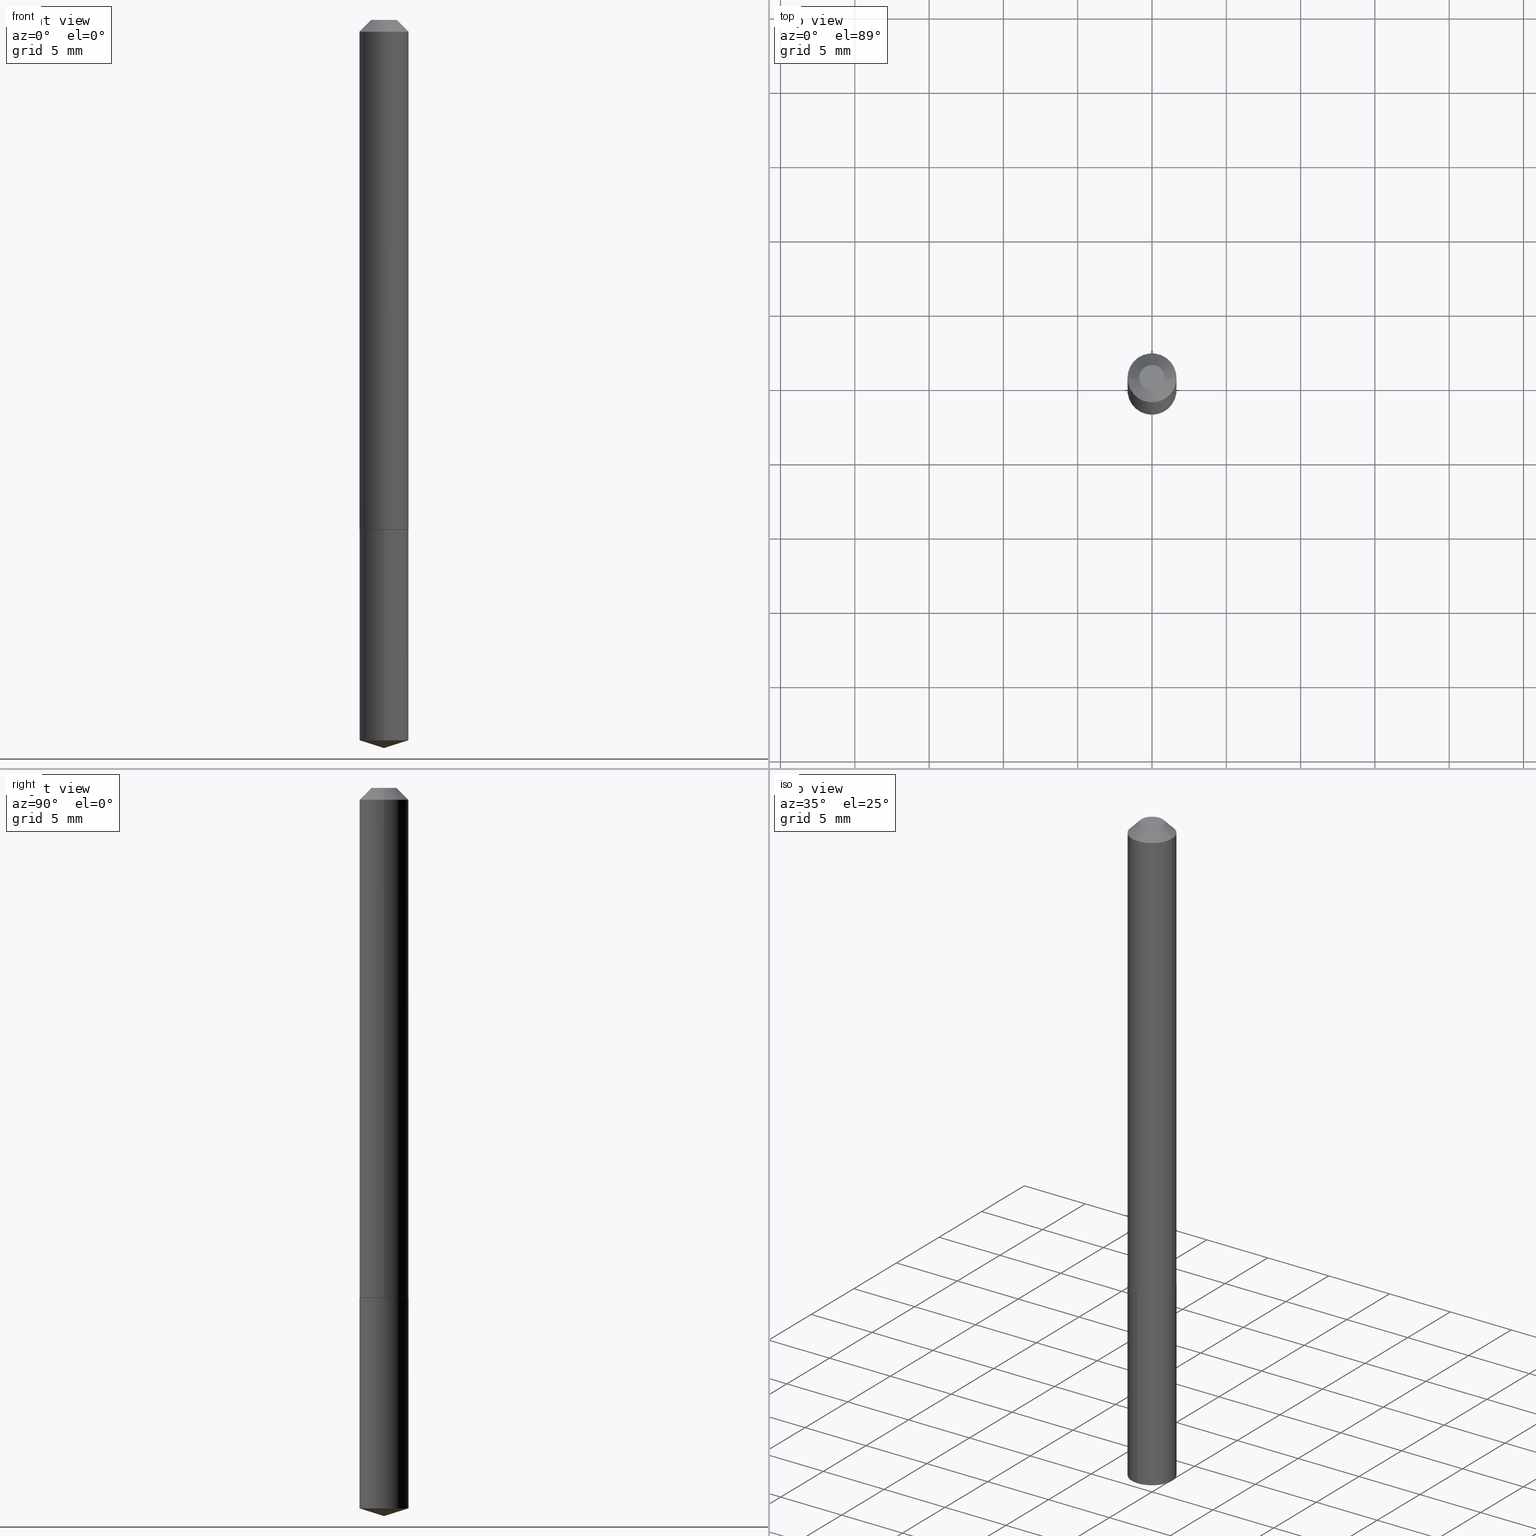
[diagram: canonical four-view strip — front | top / right | iso, engineering-drawing reading convention]
A machine part, canonical four-view strip (front | top / right | iso — engineering-drawing reading convention). The complete STEP part file that produces these views, byte-faithful:
ISO-10303-21;
HEADER;
FILE_DESCRIPTION (( 'STEP AP203' ),
    '1' );
FILE_NAME ('62077.STEP',
    '2024-04-23T05:35:52',
    ( '' ),
    ( '' ),
    'SwSTEP 2.0',
    'SolidWorks 2023',
    '' );
FILE_SCHEMA (( 'CONFIG_CONTROL_DESIGN' ));
ENDSEC;

DATA;
#1 = SECURITY_CLASSIFICATION_LEVEL ( 'unclassified' ) ;
#2 = EDGE_CURVE ( 'NONE', #41, #174, #275, .T. ) ;
#3 = AXIS2_PLACEMENT_3D ( 'NONE', #189, #330, #116 ) ;
#4 = LOCAL_TIME ( 1, 35, 52.00000000000000000, #67 ) ;
#5 = CALENDAR_DATE ( 2024, 23, 4 ) ;
#6 = EDGE_CURVE ( 'NONE', #93, #350, #31, .T. ) ;
#7 = ADVANCED_BREP_SHAPE_REPRESENTATION ( '62077', ( #328, #338, #224 ), #76 ) ;
#8 = AXIS2_PLACEMENT_3D ( 'NONE', #228, #341, #196 ) ;
#9 = CONICAL_SURFACE ( 'NONE', #107, 124.8659371009155308, 1.265363707695892792 ) ;
#10 = CC_DESIGN_PERSON_AND_ORGANIZATION_ASSIGNMENT ( #179, #264, ( #190 ) ) ;
#11 = DIRECTION ( 'NONE',  ( 2.445529134610573357E-29, -3.491394945104238914E-15, -1.000000000000000000 ) ) ;
#12 = APPLICATION_CONTEXT ( 'configuration controlled 3d designs of mechanical parts and assemblies' ) ;
#13 = DIRECTION ( 'NONE',  ( -1.000000000000000000, 6.982962677686266711E-15, 0.000000000000000000 ) ) ;
#14 = ORIENTED_EDGE ( 'NONE', *, *, #283, .F. ) ;
#15 = EDGE_CURVE ( 'NONE', #388, #138, #121, .T. ) ;
#16 = CARTESIAN_POINT ( 'NONE',  ( 0.000000000000000000, 0.000000000000000000, 0.000000000000000000 ) ) ;
#17 = CARTESIAN_POINT ( 'NONE',  ( 4.717507330631521726E-29, -6.735483303531877535E-15, -1.929099999999999815 ) ) ;
#18 = CARTESIAN_POINT ( 'NONE',  ( 3.302116528991790311E-29, -4.714547251839899498E-15, -1.350300000000000056 ) ) ;
#19 = FACE_OUTER_BOUND ( 'NONE', #334, .T. ) ;
#20 = CIRCLE ( 'NONE', #70, 0.06494999999999999385 ) ;
#21 = LINE ( 'NONE', #166, #268 ) ;
#22 = ADVANCED_FACE ( 'NONE', ( #128 ), #235, .F. ) ;
#23 = DIRECTION ( 'NONE',  ( -2.445468806185136597E-29, 3.491481338843145583E-15, 1.000000000000000000 ) ) ;
#24 = EDGE_LOOP ( 'NONE', ( #347, #318, #262 ) ) ;
#25 = ORGANIZATION ( 'UNSPECIFIED', 'UNSPECIFIED', '' ) ;
#26 = APPROVAL_ROLE ( '' ) ;
#27 = APPROVAL ( #39, 'UNSPECIFIED' ) ;
#28 = ADVANCED_FACE ( 'NONE', ( #206 ), #343, .T. ) ;
#29 = EDGE_LOOP ( 'NONE', ( #170, #302, #125, #332 ) ) ;
#30 = DATE_AND_TIME ( #380, #4 ) ;
#31 = CIRCLE ( 'NONE', #368, 0.06494999999999999385 ) ;
#32 = ORIENTED_EDGE ( 'NONE', *, *, #390, .F. ) ;
#33 = CIRCLE ( 'NONE', #243, 0.03369999999999999385 ) ;
#34 = CARTESIAN_POINT ( 'NONE',  ( 3.302116528991790311E-29, -4.714547251839899498E-15, -1.350300000000000056 ) ) ;
#35 = DIRECTION ( 'NONE',  ( -2.445529134610573638E-29, 3.491394945104238914E-15, 1.000000000000000000 ) ) ;
#36 = EDGE_LOOP ( 'NONE', ( #269, #81, #389, #14 ) ) ;
#37 = CC_DESIGN_PERSON_AND_ORGANIZATION_ASSIGNMENT ( #113, #354, ( #190 ) ) ;
#38 = FACE_OUTER_BOUND ( 'NONE', #149, .T. ) ;
#39 = APPROVAL_STATUS ( 'not_yet_approved' ) ;
#40 = APPROVAL_PERSON_ORGANIZATION ( #141, #27, #26 ) ;
#41 = VERTEX_POINT ( 'NONE', #119 ) ;
#42 = DIRECTION ( 'NONE',  ( -2.445468806185136877E-29, 3.491481338843145188E-15, 1.000000000000000000 ) ) ;
#43 = ADVANCED_FACE ( 'NONE', ( #372 ), #253, .T. ) ;
#44 = DIRECTION ( 'NONE',  ( -2.445529134610573638E-29, 3.491394945104238914E-15, 1.000000000000000000 ) ) ;
#45 =( CONVERSION_BASED_UNIT ( 'INCH', #306 ) LENGTH_UNIT ( ) NAMED_UNIT ( #212 ) );
#46 = CARTESIAN_POINT ( 'NONE',  ( 3.300893794588698070E-29, -4.712801511170477994E-15, -1.349800000000000111 ) ) ;
#47 = CARTESIAN_POINT ( 'NONE',  ( 3.300893794588698070E-29, -4.712801511170477994E-15, -1.349800000000000111 ) ) ;
#48 = DIRECTION ( 'NONE',  ( 1.000000000000000000, -6.982962677686267499E-15, 4.876176775795936914E-29 ) ) ;
#49 = DIRECTION ( 'NONE',  ( 1.000000000000000000, -6.982962677686265922E-15, 0.000000000000000000 ) ) ;
#50 = APPLICATION_CONTEXT ( 'configuration controlled 3d designs of mechanical parts and assemblies' ) ;
#51 = DIRECTION ( 'NONE',  ( -0.7071067811864147901, 7.493145998869874533E-15, 0.7071067811866802444 ) ) ;
#52 = EDGE_CURVE ( 'NONE', #274, #93, #98, .T. ) ;
#53 = DIRECTION ( 'NONE',  ( 1.000000000000000000, -6.982962677686267499E-15, 4.876196328173749550E-29 ) ) ;
#54 = CARTESIAN_POINT ( 'NONE',  ( -0.06494999999999999385, -1.949457644628476450E-15, -0.03125000000000020123 ) ) ;
#55 = CALENDAR_DATE ( 2024, 23, 4 ) ;
#56 = DIRECTION ( 'NONE',  ( -2.445529134610573638E-29, 3.491394945104239308E-15, 1.000000000000000000 ) ) ;
#57 =( NAMED_UNIT ( * ) PLANE_ANGLE_UNIT ( ) SI_UNIT ( $, .RADIAN. ) );
#58 = ADVANCED_FACE ( 'NONE', ( #333 ), #286, .T. ) ;
#59 = APPLICATION_PROTOCOL_DEFINITION ( 'international standard', 'config_control_design', 1994, #50 ) ;
#60 = AXIS2_PLACEMENT_3D ( 'NONE', #214, #222, #184 ) ;
#61 = LOCAL_TIME ( 1, 35, 52.00000000000000000, #111 ) ;
#62 = DIRECTION ( 'NONE',  ( -2.445468806185136597E-29, 3.491481338843145583E-15, 1.000000000000000000 ) ) ;
#63 = ADVANCED_FACE ( 'NONE', ( #301 ), #374, .T. ) ;
#64 = DIRECTION ( 'NONE',  ( 1.000000000000000000, 0.000000000000000000, 0.000000000000000000 ) ) ;
#65 = COORDINATED_UNIVERSAL_TIME_OFFSET ( 5, 0, .BEHIND. ) ;
#66 = ORIENTED_EDGE ( 'NONE', *, *, #52, .F. ) ;
#67 = COORDINATED_UNIVERSAL_TIME_OFFSET ( 5, 0, .BEHIND. ) ;
#68 = DIRECTION ( 'NONE',  ( 1.000000000000000000, -6.982962677686265133E-15, 0.000000000000000000 ) ) ;
#69 = ORIENTED_EDGE ( 'NONE', *, *, #6, .T. ) ;
#70 = AXIS2_PLACEMENT_3D ( 'NONE', #34, #271, #187 ) ;
#71 = DIRECTION ( 'NONE',  ( -2.445468806185136597E-29, 3.491481338843145583E-15, 1.000000000000000000 ) ) ;
#72 = ORIENTED_EDGE ( 'NONE', *, *, #220, .T. ) ;
#73 = CARTESIAN_POINT ( 'NONE',  ( 7.642090019328600035E-31, -1.091087918388489897E-16, -0.03125000000000020123 ) ) ;
#74 = ORIENTED_EDGE ( 'NONE', *, *, #120, .T. ) ;
#75 = CLOSED_SHELL ( 'NONE', ( #43, #285, #367, #265, #126 ) ) ;
#76 =( GEOMETRIC_REPRESENTATION_CONTEXT ( 3 ) GLOBAL_UNCERTAINTY_ASSIGNED_CONTEXT ( ( #218 ) ) GLOBAL_UNIT_ASSIGNED_CONTEXT ( ( #45, #57, #349 ) ) REPRESENTATION_CONTEXT ( 'NONE', 'WORKASPACE' ) );
#77 = DIRECTION ( 'NONE',  ( 1.000000000000000000, -6.982962677686267499E-15, 4.876176775795936914E-29 ) ) ;
#78 = DIRECTION ( 'NONE',  ( -2.445468806185136597E-29, 3.491481338843145583E-15, 1.000000000000000000 ) ) ;
#79 = DIRECTION ( 'NONE',  ( -6.982962677686266711E-15, -1.000000000000000000, 4.206078512185163024E-15 ) ) ;
#80 = LINE ( 'NONE', #305, #87 ) ;
#81 = ORIENTED_EDGE ( 'NONE', *, *, #314, .T. ) ;
#82 = AXIS2_PLACEMENT_3D ( 'NONE', #284, #200, #242 ) ;
#83 = VERTEX_POINT ( 'NONE', #375 ) ;
#84 = EDGE_CURVE ( 'NONE', #83, #138, #100, .T. ) ;
#85 = PERSON_AND_ORGANIZATION ( #194, #25 ) ;
#86 = DIRECTION ( 'NONE',  ( -6.982962677686268288E-15, -1.000000000000000000, 3.500519750498691416E-15 ) ) ;
#87 = VECTOR ( 'NONE', #44, 39.37007874015748143 ) ;
#88 = SECURITY_CLASSIFICATION ( '', '', #1 ) ;
#89 = FACE_OUTER_BOUND ( 'NONE', #373, .T. ) ;
#90 = CALENDAR_DATE ( 2024, 23, 4 ) ;
#91 = COORDINATED_UNIVERSAL_TIME_OFFSET ( 5, 0, .BEHIND. ) ;
#92 = AXIS2_PLACEMENT_3D ( 'NONE', #47, #78, #257 ) ;
#93 = VERTEX_POINT ( 'NONE', #272 ) ;
#94 = CARTESIAN_POINT ( 'NONE',  ( 4.717670253577257611E-29, -6.735249988600586728E-15, -1.929099999999999815 ) ) ;
#95 = AXIS2_PLACEMENT_3D ( 'NONE', #16, #247, #77 ) ;
#96 = DIRECTION ( 'NONE',  ( 0.7071067811865452413, -7.319954787623248157E-15, -0.7071067811865497932 ) ) ;
#97 = VERTEX_POINT ( 'NONE', #365 ) ;
#98 = LINE ( 'NONE', #249, #207 ) ;
#99 = AXIS2_PLACEMENT_3D ( 'NONE', #130, #379, #105 ) ;
#100 = LINE ( 'NONE', #193, #263 ) ;
#101 = APPROVAL_PERSON_ORGANIZATION ( #85, #319, #293 ) ;
#102 = DIRECTION ( 'NONE',  ( -1.000000000000000000, 6.982962677686266711E-15, 0.000000000000000000 ) ) ;
#103 = VERTEX_POINT ( 'NONE', #94 ) ;
#104 = CARTESIAN_POINT ( 'NONE',  ( 3.302116528991790311E-29, -4.714547251839899498E-15, -1.350300000000000056 ) ) ;
#105 = DIRECTION ( 'NONE',  ( 1.000000000000000000, -6.982962677686265922E-15, 4.876176775795935793E-29 ) ) ;
#106 = ORIENTED_EDGE ( 'NONE', *, *, #84, .T. ) ;
#107 = AXIS2_PLACEMENT_3D ( 'NONE', #118, #56, #86 ) ;
#108 = CARTESIAN_POINT ( 'NONE',  ( -0.06494999999999999385, 3.444346340768739447E-16, -0.03125000000000020123 ) ) ;
#109 = DATE_TIME_ROLE ( 'classification_date' ) ;
#110 = CARTESIAN_POINT ( 'NONE',  ( -9.156308579886307474E-28, 1.307211272556754766E-13, 37.44097874015747607 ) ) ;
#111 = COORDINATED_UNIVERSAL_TIME_OFFSET ( 5, 0, .BEHIND. ) ;
#112 = DIRECTION ( 'NONE',  ( 0.7071067811864147901, -2.468850131080866299E-15, 0.7071067811866802444 ) ) ;
#113 = PERSON_AND_ORGANIZATION ( #194, #25 ) ;
#114 = CIRCLE ( 'NONE', #82, 0.06494999999999999385 ) ;
#115 = ORIENTED_EDGE ( 'NONE', *, *, #255, .T. ) ;
#116 = DIRECTION ( 'NONE',  ( -6.982962677686266711E-15, -1.000000000000000000, 4.206078512185163024E-15 ) ) ;
#117 = DATE_AND_TIME ( #5, #252 ) ;
#118 = CARTESIAN_POINT ( 'NONE',  ( -9.156308579886307474E-28, 1.307211272556754766E-13, 37.44097874015747607 ) ) ;
#119 = CARTESIAN_POINT ( 'NONE',  ( 0.06445000000000018769, -5.164599196416782051E-15, -1.350300000000000278 ) ) ;
#120 = EDGE_CURVE ( 'NONE', #274, #144, #33, .T. ) ;
#121 = CIRCLE ( 'NONE', #197, 0.06494999999999999385 ) ;
#122 = AXIS2_PLACEMENT_3D ( 'NONE', #213, #324, #266 ) ;
#123 = ORIENTED_EDGE ( 'NONE', *, *, #142, .F. ) ;
#124 = SHAPE_DEFINITION_REPRESENTATION ( #331, #7 ) ;
#125 = ORIENTED_EDGE ( 'NONE', *, *, #185, .T. ) ;
#126 = ADVANCED_FACE ( 'NONE', ( #38 ), #161, .F. ) ;
#127 = DIRECTION ( 'NONE',  ( -6.659769872151635244E-15, -0.9537169507482271547, 0.3007057995042727860 ) ) ;
#128 = FACE_OUTER_BOUND ( 'NONE', #267, .T. ) ;
#129 = CIRCLE ( 'NONE', #186, 0.06494999999999999385 ) ;
#130 = CARTESIAN_POINT ( 'NONE',  ( -6.946023076177115566E-30, -1.043807610497387225E-14, -1.350300000000000056 ) ) ;
#131 = CARTESIAN_POINT ( 'NONE',  ( -0.06495000000000016038, -4.251304004294291685E-15, -1.349800000000000111 ) ) ;
#132 = DIRECTION ( 'NONE',  ( -2.445468806185136597E-29, 3.491481338843145583E-15, 1.000000000000000000 ) ) ;
#133 = LINE ( 'NONE', #108, #251 ) ;
#134 = EDGE_CURVE ( 'NONE', #241, #174, #336, .T. ) ;
#135 = VECTOR ( 'NONE', #299, 39.37007874015748143 ) ;
#136 = LINE ( 'NONE', #237, #344 ) ;
#137 = CARTESIAN_POINT ( 'NONE',  ( -2.919964657261587705E-48, 4.168935659749540379E-34, 1.194030629168666829E-19 ) ) ;
#138 = VERTEX_POINT ( 'NONE', #366 ) ;
#139 = PERSON_AND_ORGANIZATION ( #194, #25 ) ;
#140 = ORIENTED_EDGE ( 'NONE', *, *, #294, .T. ) ;
#141 = PERSON_AND_ORGANIZATION ( #194, #25 ) ;
#142 = EDGE_CURVE ( 'NONE', #97, #41, #147, .T. ) ;
#143 = CALENDAR_DATE ( 2024, 23, 4 ) ;
#144 = VERTEX_POINT ( 'NONE', #151 ) ;
#145 = VECTOR ( 'NONE', #112, 39.37007874015748143 ) ;
#146 = APPROVAL_ROLE ( '' ) ;
#147 = CIRCLE ( 'NONE', #60, 0.06445000000000018769 ) ;
#148 = CARTESIAN_POINT ( 'NONE',  ( 0.000000000000000000, 0.000000000000000000, 0.000000000000000000 ) ) ;
#149 = EDGE_LOOP ( 'NONE', ( #155, #280 ) ) ;
#150 = APPLICATION_PROTOCOL_DEFINITION ( 'international standard', 'config_control_design', 1994, #12 ) ;
#151 = CARTESIAN_POINT ( 'NONE',  ( -0.03369999999999999385, 2.898802381574505777E-16, 2.388061258318971361E-19 ) ) ;
#152 = EDGE_LOOP ( 'NONE', ( #300, #160, #254, #230 ) ) ;
#153 = AXIS2_PLACEMENT_3D ( 'NONE', #104, #11, #159 ) ;
#154 = LOCAL_TIME ( 1, 35, 52.00000000000000000, #205 ) ;
#155 = ORIENTED_EDGE ( 'NONE', *, *, #15, .T. ) ;
#156 = FACE_OUTER_BOUND ( 'NONE', #24, .T. ) ;
#157 = PRODUCT ( '62077', '62077', '', ( #356 ) ) ;
#158 = CARTESIAN_POINT ( 'NONE',  ( -4.535434259156761574E-16, -0.06495000000000664131, -1.908621343662309844 ) ) ;
#159 = DIRECTION ( 'NONE',  ( 6.982962677686265922E-15, 1.000000000000000000, -3.491394945104238914E-15 ) ) ;
#160 = ORIENTED_EDGE ( 'NONE', *, *, #167, .T. ) ;
#161 = PLANE ( 'NONE',  #153 ) ;
#162 = FACE_OUTER_BOUND ( 'NONE', #383, .T. ) ;
#163 = CIRCLE ( 'NONE', #370, 0.03369999999999999385 ) ;
#164 = ORIENTED_EDGE ( 'NONE', *, *, #277, .T. ) ;
#165 = EDGE_LOOP ( 'NONE', ( #66, #211, #115, #164 ) ) ;
#166 = CARTESIAN_POINT ( 'NONE',  ( 4.717671682219175913E-29, -6.735249988600587517E-15, -1.929099999999999815 ) ) ;
#167 = EDGE_CURVE ( 'NONE', #241, #350, #320, .T. ) ;
#168 = VERTEX_POINT ( 'NONE', #158 ) ;
#169 = AXIS2_PLACEMENT_3D ( 'NONE', #178, #290, #171 ) ;
#170 = ORIENTED_EDGE ( 'NONE', *, *, #167, .F. ) ;
#171 = DIRECTION ( 'NONE',  ( -6.982962677686266711E-15, -1.000000000000000000, 4.206078512185163024E-15 ) ) ;
#172 = DIRECTION ( 'NONE',  ( -6.982962677686268288E-15, -1.000000000000000000, 3.500519750498691416E-15 ) ) ;
#173 = CC_DESIGN_APPROVAL ( #319, ( #190 ) ) ;
#174 = VERTEX_POINT ( 'NONE', #363 ) ;
#175 = ADVANCED_FACE ( 'NONE', ( #279 ), #351, .T. ) ;
#176 = ORIENTED_EDGE ( 'NONE', *, *, #52, .T. ) ;
#177 = CC_DESIGN_DATE_AND_TIME_ASSIGNMENT ( #217, #323, ( #297 ) ) ;
#178 = CARTESIAN_POINT ( 'NONE',  ( 4.667507641392892342E-29, -6.663867568846296048E-15, -1.908621343662310288 ) ) ;
#179 = PERSON_AND_ORGANIZATION ( #194, #25 ) ;
#180 = ORIENTED_EDGE ( 'NONE', *, *, #120, .F. ) ;
#181 = AXIS2_PLACEMENT_3D ( 'NONE', #229, #316, #48 ) ;
#182 = VECTOR ( 'NONE', #42, 39.37007874015748143 ) ;
#183 = APPROVAL_STATUS ( 'not_yet_approved' ) ;
#184 = DIRECTION ( 'NONE',  ( 1.000000000000000000, -6.982962677686269077E-15, 0.000000000000000000 ) ) ;
#185 = EDGE_CURVE ( 'NONE', #174, #93, #304, .T. ) ;
#186 = AXIS2_PLACEMENT_3D ( 'NONE', #325, #62, #68 ) ;
#187 = DIRECTION ( 'NONE',  ( -6.982962677686266711E-15, -1.000000000000000000, 4.206078512185163024E-15 ) ) ;
#188 = CARTESIAN_POINT ( 'NONE',  ( -0.06495000000000007712, 4.614975068761856187E-16, -3.194848341120565109E-30 ) ) ;
#189 = CARTESIAN_POINT ( 'NONE',  ( 3.302116528991790311E-29, -4.714547251839899498E-15, -1.350300000000000056 ) ) ;
#190 = PRODUCT_DEFINITION_FORMATION_WITH_SPECIFIED_SOURCE ( 'ANY', '', #157, .NOT_KNOWN. ) ;
#191 = DIRECTION ( 'NONE',  ( 2.445468806185136597E-29, -3.491481338843145583E-15, -1.000000000000000000 ) ) ;
#192 = EDGE_LOOP ( 'NONE', ( #298, #106, #357, #359 ) ) ;
#193 = CARTESIAN_POINT ( 'NONE',  ( 4.614975068762179620E-16, 0.06494999999999528928, -1.350300000000000278 ) ) ;
#194 = PERSON ( 'UNSPECIFIED', 'UNSPECIFIED', 'UNSPECIFIED', ('UNSPECIFIED'), ('UNSPECIFIED'), ('UNSPECIFIED') ) ;
#195 = DIRECTION ( 'NONE',  ( 6.776566513254258926E-15, 0.9537169507482290420, 0.3007057995042661247 ) ) ;
#196 = DIRECTION ( 'NONE',  ( 1.000000000000000000, -6.982962677686265922E-15, 0.000000000000000000 ) ) ;
#197 = AXIS2_PLACEMENT_3D ( 'NONE', #18, #259, #79 ) ;
#198 = ADVANCED_FACE ( 'NONE', ( #162 ), #360, .T. ) ;
#199 = AXIS2_PLACEMENT_3D ( 'NONE', #385, #236, #288 ) ;
#200 = DIRECTION ( 'NONE',  ( -2.445529134610573638E-29, 3.491394945104239308E-15, 1.000000000000000000 ) ) ;
#201 = CC_DESIGN_APPROVAL ( #27, ( #88 ) ) ;
#202 = ORIENTED_EDGE ( 'NONE', *, *, #291, .T. ) ;
#203 = DIRECTION ( 'NONE',  ( 1.000000000000000000, -6.982962677686265133E-15, 0.000000000000000000 ) ) ;
#204 = ORIENTED_EDGE ( 'NONE', *, *, #2, .T. ) ;
#205 = COORDINATED_UNIVERSAL_TIME_OFFSET ( 5, 0, .BEHIND. ) ;
#206 = FACE_OUTER_BOUND ( 'NONE', #371, .T. ) ;
#207 = VECTOR ( 'NONE', #96, 39.37007874015748143 ) ;
#208 = PERSON_AND_ORGANIZATION ( #194, #25 ) ;
#209 = CYLINDRICAL_SURFACE ( 'NONE', #181, 0.06495000000000007712 ) ;
#210 = DIRECTION ( 'NONE',  ( -2.445529134610573638E-29, 3.491394945104239308E-15, 1.000000000000000000 ) ) ;
#211 = ORIENTED_EDGE ( 'NONE', *, *, #291, .F. ) ;
#212 = DIMENSIONAL_EXPONENTS ( 1.000000000000000000, 0.000000000000000000, 0.000000000000000000, 0.000000000000000000, 0.000000000000000000, 0.000000000000000000, 0.000000000000000000 ) ;
#213 = CARTESIAN_POINT ( 'NONE',  ( 3.302116528991790311E-29, -4.714547251839899498E-15, -1.350300000000000056 ) ) ;
#214 = CARTESIAN_POINT ( 'NONE',  ( 3.302116528991790871E-29, -4.714547251839900287E-15, -1.350300000000000278 ) ) ;
#215 = EDGE_CURVE ( 'NONE', #103, #83, #21, .T. ) ;
#216 = AXIS2_PLACEMENT_3D ( 'NONE', #110, #210, #172 ) ;
#217 = DATE_AND_TIME ( #90, #361 ) ;
#218 = UNCERTAINTY_MEASURE_WITH_UNIT (LENGTH_MEASURE( 1.000000000000000082E-05 ), #45, 'distance_accuracy_value', 'NONE');
#219 = PERSON_AND_ORGANIZATION_ROLE ( 'classification_officer' ) ;
#220 = EDGE_CURVE ( 'NONE', #103, #168, #281, .T. ) ;
#221 = CARTESIAN_POINT ( 'NONE',  ( -5.839929314523175409E-48, 8.337871319499080759E-34, 2.388061258337333659E-19 ) ) ;
#222 = DIRECTION ( 'NONE',  ( -2.445468806185136597E-29, 3.491481338843145583E-15, 1.000000000000000000 ) ) ;
#223 = AXIS2_PLACEMENT_3D ( 'NONE', #73, #278, #13 ) ;
#224 = AXIS2_PLACEMENT_3D ( 'NONE', #148, #244, #64 ) ;
#225 = AXIS2_PLACEMENT_3D ( 'NONE', #256, #191, #102 ) ;
#226 = CARTESIAN_POINT ( 'NONE',  ( 7.642090019328600035E-31, -1.091087918388489897E-16, -0.03125000000000020123 ) ) ;
#227 = EDGE_CURVE ( 'NONE', #168, #388, #80, .T. ) ;
#228 = CARTESIAN_POINT ( 'NONE',  ( 3.300893794588698070E-29, -4.712801511170477994E-15, -1.349800000000000111 ) ) ;
#229 = CARTESIAN_POINT ( 'NONE',  ( 0.000000000000000000, 0.000000000000000000, 0.000000000000000000 ) ) ;
#230 = ORIENTED_EDGE ( 'NONE', *, *, #185, .F. ) ;
#231 = CLOSED_SHELL ( 'NONE', ( #175, #63, #198, #240, #28, #329, #58, #22 ) ) ;
#232 = CONICAL_SURFACE ( 'NONE', #216, 124.8659371009155308, 1.265363707695892792 ) ;
#233 = CC_DESIGN_APPROVAL ( #270, ( #297 ) ) ;
#234 = ORIENTED_EDGE ( 'NONE', *, *, #314, .F. ) ;
#235 = PLANE ( 'NONE',  #250 ) ;
#236 = DIRECTION ( 'NONE',  ( -2.445468806185136597E-29, 3.491481338843145583E-15, 1.000000000000000000 ) ) ;
#237 = CARTESIAN_POINT ( 'NONE',  ( -0.06495000000000016038, -4.251304004294291685E-15, -1.349800000000000111 ) ) ;
#238 = DATE_AND_TIME ( #55, #61 ) ;
#239 = DIRECTION ( 'NONE',  ( 2.438088387897960049E-29, -3.491481338843145188E-15, -1.000000000000000000 ) ) ;
#240 = ADVANCED_FACE ( 'NONE', ( #19 ), #308, .F. ) ;
#241 = VERTEX_POINT ( 'NONE', #131 ) ;
#242 = DIRECTION ( 'NONE',  ( -6.982962677686266711E-15, -1.000000000000000000, 4.206078512185163024E-15 ) ) ;
#243 = AXIS2_PLACEMENT_3D ( 'NONE', #221, #71, #369 ) ;
#244 = DIRECTION ( 'NONE',  ( 0.000000000000000000, 0.000000000000000000, 1.000000000000000000 ) ) ;
#245 = EDGE_CURVE ( 'NONE', #174, #241, #295, .T. ) ;
#246 = CYLINDRICAL_SURFACE ( 'NONE', #122, 0.06494999999999999385 ) ;
#247 = DIRECTION ( 'NONE',  ( -2.445468806185136597E-29, 3.491481338843145583E-15, 1.000000000000000000 ) ) ;
#248 = CC_DESIGN_PERSON_AND_ORGANIZATION_ASSIGNMENT ( #139, #348, ( #297 ) ) ;
#249 = CARTESIAN_POINT ( 'NONE',  ( 0.06494999999999999385, -5.546981367941099671E-16, -0.03125000000000020123 ) ) ;
#250 = AXIS2_PLACEMENT_3D ( 'NONE', #137, #239, #307 ) ;
#251 = VECTOR ( 'NONE', #313, 39.37007874015748143 ) ;
#252 = LOCAL_TIME ( 1, 35, 52.00000000000000000, #65 ) ;
#253 = CYLINDRICAL_SURFACE ( 'NONE', #3, 0.06494999999999999385 ) ;
#254 = ORIENTED_EDGE ( 'NONE', *, *, #6, .F. ) ;
#255 = EDGE_CURVE ( 'NONE', #144, #350, #133, .T. ) ;
#256 = CARTESIAN_POINT ( 'NONE',  ( 7.642090019328600035E-31, -1.091087918388489897E-16, -0.03125000000000020123 ) ) ;
#257 = DIRECTION ( 'NONE',  ( 1.000000000000000000, -6.982962677686265922E-15, 0.000000000000000000 ) ) ;
#258 = DIRECTION ( 'NONE',  ( 1.000000000000000000, -6.982962677686265922E-15, 0.000000000000000000 ) ) ;
#259 = DIRECTION ( 'NONE',  ( -2.445529134610573638E-29, 3.491394945104239308E-15, 1.000000000000000000 ) ) ;
#260 = APPROVAL_DATE_TIME ( #387, #319 ) ;
#261 = PERSON_AND_ORGANIZATION_ROLE ( 'design_owner' ) ;
#262 = ORIENTED_EDGE ( 'NONE', *, *, #346, .F. ) ;
#263 = VECTOR ( 'NONE', #35, 39.37007874015748143 ) ;
#264 = PERSON_AND_ORGANIZATION_ROLE ( 'design_supplier' ) ;
#265 = ADVANCED_FACE ( 'NONE', ( #364 ), #246, .T. ) ;
#266 = DIRECTION ( 'NONE',  ( -6.982962677686266711E-15, -1.000000000000000000, 4.206078512185163024E-15 ) ) ;
#267 = EDGE_LOOP ( 'NONE', ( #202, #74 ) ) ;
#268 = VECTOR ( 'NONE', #195, 39.37007874015748854 ) ;
#269 = ORIENTED_EDGE ( 'NONE', *, *, #84, .F. ) ;
#270 = APPROVAL ( #358, 'UNSPECIFIED' ) ;
#271 = DIRECTION ( 'NONE',  ( -2.445529134610573638E-29, 3.491394945104239308E-15, 1.000000000000000000 ) ) ;
#272 = CARTESIAN_POINT ( 'NONE',  ( 0.06494999999999999385, -5.626522177545718995E-16, -0.03125000000000020123 ) ) ;
#273 = ORIENTED_EDGE ( 'NONE', *, *, #142, .T. ) ;
#274 = VERTEX_POINT ( 'NONE', #292 ) ;
#275 = LINE ( 'NONE', #345, #145 ) ;
#276 = CC_DESIGN_DATE_AND_TIME_ASSIGNMENT ( #117, #109, ( #88 ) ) ;
#277 = EDGE_CURVE ( 'NONE', #350, #93, #129, .T. ) ;
#278 = DIRECTION ( 'NONE',  ( 2.445468806185136597E-29, -3.491481338843145583E-15, -1.000000000000000000 ) ) ;
#279 = FACE_OUTER_BOUND ( 'NONE', #327, .T. ) ;
#280 = ORIENTED_EDGE ( 'NONE', *, *, #283, .T. ) ;
#281 = LINE ( 'NONE', #17, #376 ) ;
#282 = APPROVAL_DATE_TIME ( #30, #27 ) ;
#283 = EDGE_CURVE ( 'NONE', #138, #388, #20, .T. ) ;
#284 = CARTESIAN_POINT ( 'NONE',  ( 4.667507641392892342E-29, -6.663867568846296048E-15, -1.908621343662310288 ) ) ;
#285 = ADVANCED_FACE ( 'NONE', ( #156 ), #9, .T. ) ;
#286 = CONICAL_SURFACE ( 'NONE', #223, 0.06494999999999999385, 0.7853981633974450594 ) ;
#287 = APPROVAL_PERSON_ORGANIZATION ( #208, #270, #146 ) ;
#288 = DIRECTION ( 'NONE',  ( 1.000000000000000000, -6.982962677686269077E-15, 0.000000000000000000 ) ) ;
#289 = APPROVAL_DATE_TIME ( #238, #270 ) ;
#290 = DIRECTION ( 'NONE',  ( -2.445529134610573638E-29, 3.491394945104239308E-15, 1.000000000000000000 ) ) ;
#291 = EDGE_CURVE ( 'NONE', #144, #274, #163, .T. ) ;
#292 = CARTESIAN_POINT ( 'NONE',  ( 0.03369999999999999385, -3.929484596595052854E-16, 2.388061258359294556E-19 ) ) ;
#293 = APPROVAL_ROLE ( '' ) ;
#294 = EDGE_CURVE ( 'NONE', #41, #97, #303, .T. ) ;
#295 = CIRCLE ( 'NONE', #315, 0.06495000000000016038 ) ;
#296 = ORIENTED_EDGE ( 'NONE', *, *, #390, .T. ) ;
#297 = PRODUCT_DEFINITION ( 'UNKNOWN', '', #190, #321 ) ;
#298 = ORIENTED_EDGE ( 'NONE', *, *, #346, .T. ) ;
#299 = DIRECTION ( 'NONE',  ( -2.445468806185136877E-29, 3.491481338843145188E-15, 1.000000000000000000 ) ) ;
#300 = ORIENTED_EDGE ( 'NONE', *, *, #245, .T. ) ;
#301 = FACE_OUTER_BOUND ( 'NONE', #152, .T. ) ;
#302 = ORIENTED_EDGE ( 'NONE', *, *, #134, .T. ) ;
#303 = CIRCLE ( 'NONE', #199, 0.06445000000000018769 ) ;
#304 = LINE ( 'NONE', #340, #182 ) ;
#305 = CARTESIAN_POINT ( 'NONE',  ( -4.535434259156899625E-16, -0.06495000000000471230, -1.350299999999999834 ) ) ;
#306 = LENGTH_MEASURE_WITH_UNIT ( LENGTH_MEASURE( 0.02539999999999999897 ), #339 );
#307 = DIRECTION ( 'NONE',  ( -1.000000000000000000, 6.982962677686265922E-15, -4.876176775795935793E-29 ) ) ;
#308 = PLANE ( 'NONE',  #99 ) ;
#309 = ORIENTED_EDGE ( 'NONE', *, *, #215, .F. ) ;
#310 = AXIS2_PLACEMENT_3D ( 'NONE', #46, #132, #258 ) ;
#311 = DIRECTION ( 'NONE',  ( -2.445468806185136597E-29, 3.491481338843145583E-15, 1.000000000000000000 ) ) ;
#312 = DIRECTION ( 'NONE',  ( -2.445468806185136597E-29, 3.491481338843145583E-15, 1.000000000000000000 ) ) ;
#313 = DIRECTION ( 'NONE',  ( -0.7071067811865452413, 2.468850131082233000E-15, -0.7071067811865497932 ) ) ;
#314 = EDGE_CURVE ( 'NONE', #83, #168, #114, .T. ) ;
#315 = AXIS2_PLACEMENT_3D ( 'NONE', #355, #311, #49 ) ;
#316 = DIRECTION ( 'NONE',  ( -2.445468806185136597E-29, 3.491481338843145583E-15, 1.000000000000000000 ) ) ;
#317 = CARTESIAN_POINT ( 'NONE',  ( -4.535434259156899625E-16, -0.06495000000000471230, -1.350299999999999834 ) ) ;
#318 = ORIENTED_EDGE ( 'NONE', *, *, #215, .T. ) ;
#319 = APPROVAL ( #183, 'UNSPECIFIED' ) ;
#320 = LINE ( 'NONE', #188, #135 ) ;
#321 = DESIGN_CONTEXT ( 'detailed design', #50, 'design' ) ;
#322 = CC_DESIGN_PERSON_AND_ORGANIZATION_ASSIGNMENT ( #362, #219, ( #88 ) ) ;
#323 = DATE_TIME_ROLE ( 'creation_date' ) ;
#324 = DIRECTION ( 'NONE',  ( -2.445529134610573638E-29, 3.491394945104239308E-15, 1.000000000000000000 ) ) ;
#325 = CARTESIAN_POINT ( 'NONE',  ( 7.642090019328600035E-31, -1.091087918388489897E-16, -0.03125000000000020123 ) ) ;
#326 = ORIENTED_EDGE ( 'NONE', *, *, #294, .F. ) ;
#327 = EDGE_LOOP ( 'NONE', ( #180, #176, #69, #337 ) ) ;
#328 = MANIFOLD_SOLID_BREP ( 'Body-Move/Copy2[1]', #75 ) ;
#329 = ADVANCED_FACE ( 'NONE', ( #352 ), #209, .T. ) ;
#330 = DIRECTION ( 'NONE',  ( -2.445529134610573638E-29, 3.491394945104239308E-15, 1.000000000000000000 ) ) ;
#331 = PRODUCT_DEFINITION_SHAPE ( 'NONE', 'NONE',  #297 ) ;
#332 = ORIENTED_EDGE ( 'NONE', *, *, #277, .F. ) ;
#333 = FACE_OUTER_BOUND ( 'NONE', #165, .T. ) ;
#334 = EDGE_LOOP ( 'NONE', ( #326, #123 ) ) ;
#335 = ORIENTED_EDGE ( 'NONE', *, *, #245, .F. ) ;
#336 = CIRCLE ( 'NONE', #310, 0.06495000000000016038 ) ;
#337 = ORIENTED_EDGE ( 'NONE', *, *, #255, .F. ) ;
#338 = MANIFOLD_SOLID_BREP ( 'Body-Move/Copy2[2]', #231 ) ;
#339 =( LENGTH_UNIT ( ) NAMED_UNIT ( * ) SI_UNIT ( $, .METRE. ) );
#340 = CARTESIAN_POINT ( 'NONE',  ( 0.06495000000000007712, -4.535434259157235877E-16, 3.167076815879464619E-30 ) ) ;
#341 = DIRECTION ( 'NONE',  ( -2.445468806185136597E-29, 3.491481338843145583E-15, 1.000000000000000000 ) ) ;
#342 = CARTESIAN_POINT ( 'NONE',  ( -5.839929314523175409E-48, 8.337871319499080759E-34, 2.388061258337333659E-19 ) ) ;
#343 = CONICAL_SURFACE ( 'NONE', #8, 0.06495000000000016038, 0.7853981633972606513 ) ;
#344 = VECTOR ( 'NONE', #51, 39.37007874015748143 ) ;
#345 = CARTESIAN_POINT ( 'NONE',  ( 0.06495000000000016038, -5.166344937086201976E-15, -1.349800000000000111 ) ) ;
#346 = EDGE_CURVE ( 'NONE', #168, #83, #382, .T. ) ;
#347 = ORIENTED_EDGE ( 'NONE', *, *, #220, .F. ) ;
#348 = PERSON_AND_ORGANIZATION_ROLE ( 'creator' ) ;
#349 =( NAMED_UNIT ( * ) SI_UNIT ( $, .STERADIAN. ) SOLID_ANGLE_UNIT ( ) );
#350 = VERTEX_POINT ( 'NONE', #54 ) ;
#351 = CONICAL_SURFACE ( 'NONE', #225, 0.06494999999999999385, 0.7853981633974450594 ) ;
#352 = FACE_OUTER_BOUND ( 'NONE', #29, .T. ) ;
#353 = ORIENTED_EDGE ( 'NONE', *, *, #2, .F. ) ;
#354 = PERSON_AND_ORGANIZATION_ROLE ( 'creator' ) ;
#355 = CARTESIAN_POINT ( 'NONE',  ( 3.300893794588698070E-29, -4.712801511170477994E-15, -1.349800000000000111 ) ) ;
#356 = MECHANICAL_CONTEXT ( 'NONE', #12, 'mechanical' ) ;
#357 = ORIENTED_EDGE ( 'NONE', *, *, #15, .F. ) ;
#358 = APPROVAL_STATUS ( 'not_yet_approved' ) ;
#359 = ORIENTED_EDGE ( 'NONE', *, *, #227, .F. ) ;
#360 = CONICAL_SURFACE ( 'NONE', #92, 0.06495000000000016038, 0.7853981633972606513 ) ;
#361 = LOCAL_TIME ( 1, 35, 52.00000000000000000, #91 ) ;
#362 = PERSON_AND_ORGANIZATION ( #194, #25 ) ;
#363 = CARTESIAN_POINT ( 'NONE',  ( 0.06495000000000016038, -5.166344937086201976E-15, -1.349800000000000111 ) ) ;
#364 = FACE_OUTER_BOUND ( 'NONE', #36, .T. ) ;
#365 = CARTESIAN_POINT ( 'NONE',  ( -0.06445000000000018769, -4.253953231468403675E-15, -1.350300000000000278 ) ) ;
#366 = CARTESIAN_POINT ( 'NONE',  ( 4.614975068762316684E-16, 0.06494999999999527540, -1.350300000000000278 ) ) ;
#367 = ADVANCED_FACE ( 'NONE', ( #89 ), #232, .T. ) ;
#368 = AXIS2_PLACEMENT_3D ( 'NONE', #226, #23, #203 ) ;
#369 = DIRECTION ( 'NONE',  ( 1.000000000000000000, -6.982962677686267499E-15, 4.876196328173749550E-29 ) ) ;
#370 = AXIS2_PLACEMENT_3D ( 'NONE', #342, #312, #53 ) ;
#371 = EDGE_LOOP ( 'NONE', ( #32, #273, #204, #381 ) ) ;
#372 = FACE_OUTER_BOUND ( 'NONE', #192, .T. ) ;
#373 = EDGE_LOOP ( 'NONE', ( #309, #72, #234 ) ) ;
#374 = CYLINDRICAL_SURFACE ( 'NONE', #95, 0.06495000000000007712 ) ;
#375 = CARTESIAN_POINT ( 'NONE',  ( 4.614975068762314712E-16, 0.06494999999999330476, -1.908621343662310510 ) ) ;
#376 = VECTOR ( 'NONE', #127, 39.37007874015748143 ) ;
#377 = CC_DESIGN_SECURITY_CLASSIFICATION ( #88, ( #190 ) ) ;
#378 = CC_DESIGN_PERSON_AND_ORGANIZATION_ASSIGNMENT ( #384, #261, ( #157 ) ) ;
#379 = DIRECTION ( 'NONE',  ( -2.438088387897960049E-29, 3.491481338843145188E-15, 1.000000000000000000 ) ) ;
#380 = CALENDAR_DATE ( 2024, 23, 4 ) ;
#381 = ORIENTED_EDGE ( 'NONE', *, *, #134, .F. ) ;
#382 = CIRCLE ( 'NONE', #169, 0.06494999999999999385 ) ;
#383 = EDGE_LOOP ( 'NONE', ( #140, #296, #335, #353 ) ) ;
#384 = PERSON_AND_ORGANIZATION ( #194, #25 ) ;
#385 = CARTESIAN_POINT ( 'NONE',  ( 3.302116528991790871E-29, -4.714547251839900287E-15, -1.350300000000000278 ) ) ;
#386 = PRODUCT_RELATED_PRODUCT_CATEGORY ( 'detail', '', ( #157 ) ) ;
#387 = DATE_AND_TIME ( #143, #154 ) ;
#388 = VERTEX_POINT ( 'NONE', #317 ) ;
#389 = ORIENTED_EDGE ( 'NONE', *, *, #227, .T. ) ;
#390 = EDGE_CURVE ( 'NONE', #97, #241, #136, .T. ) ;
ENDSEC;
END-ISO-10303-21;
